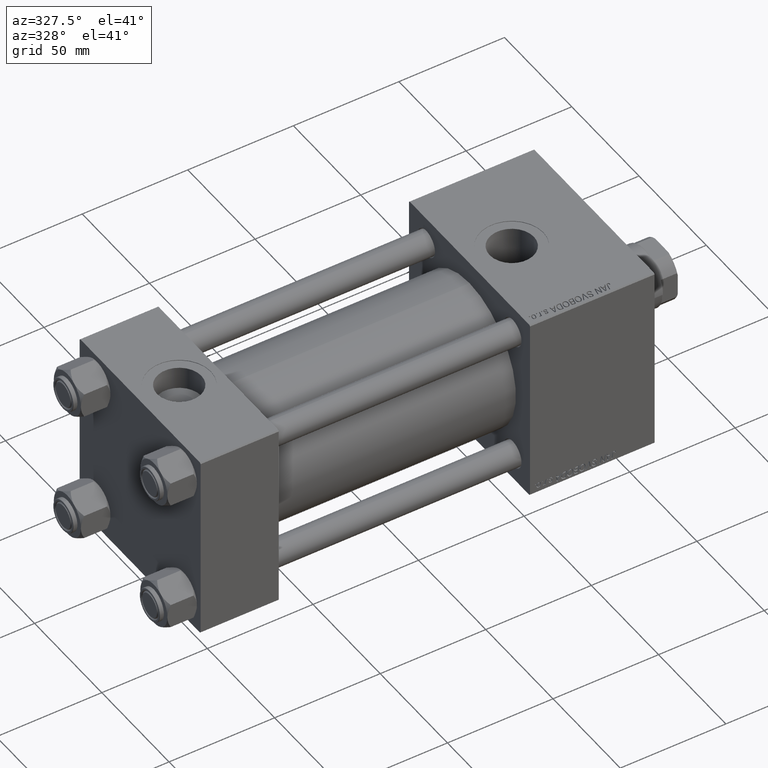
[diagram: clean part render]
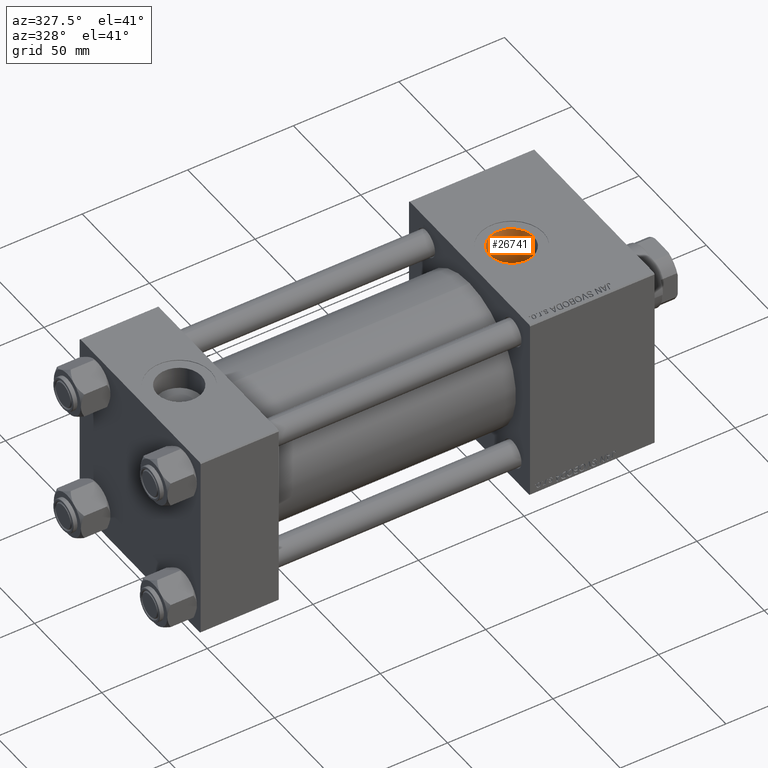
[diagram: same view with one face highlighted and labeled with its STEP entity id]
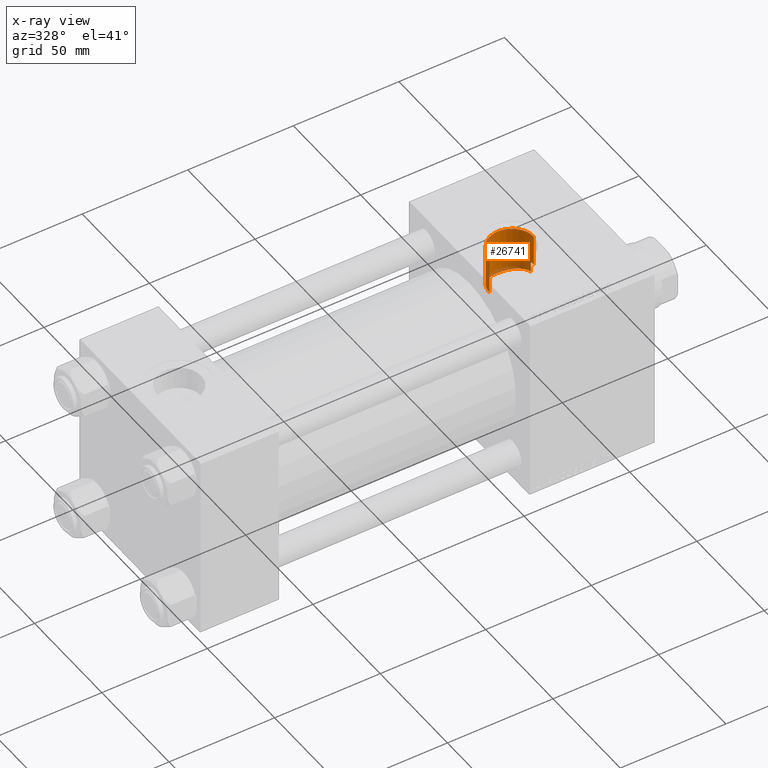
[diagram: x-ray of the same camera — body ghosted, the highlighted face saturated]
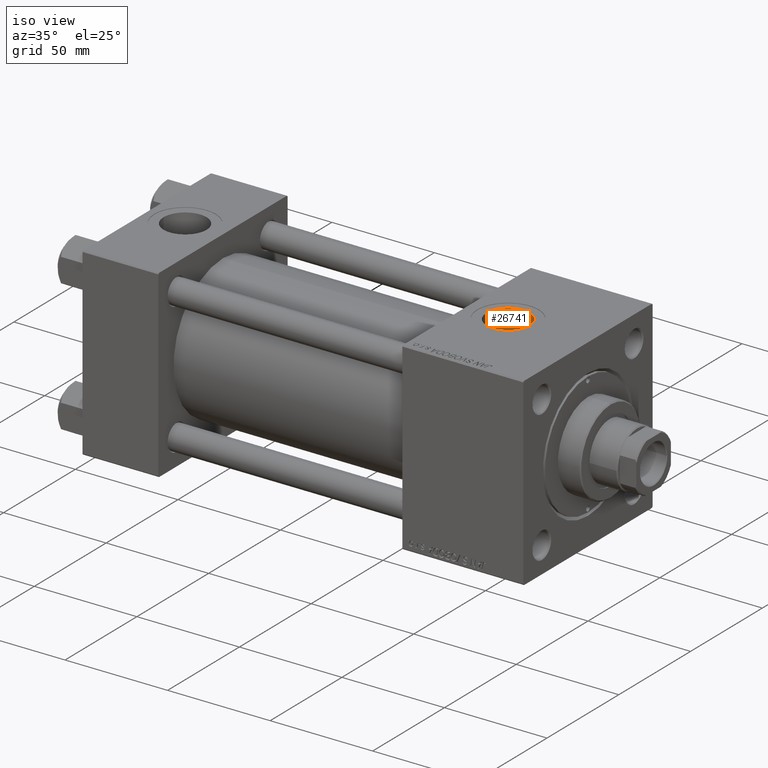
[diagram: same view with one face highlighted and labeled with its STEP entity id]
A machine part, auxiliary view. The second image highlights one B-rep face of the part: STEP entity #26741.
The next image is the same camera in x-ray: the body ghosted, the highlighted face saturated — about 5% of this face is hidden behind the body in this view.
A second angle (iso view) of the same face is appended — the face is thin or edge-on in the first view.
In plain terms, the highlighted cylindrical surface (edge-blend (fillet) strip) has radius 10.48 mm, axis along (0, 0, -1).
Its self-contained STEP definition (entity closure, byte-faithful):
#40 = CARTESIAN_POINT ( 'NONE',  ( 174.7045387977236430, 10.40468030871039140, 22.73199781475518577 ) ) ;
#557 = CARTESIAN_POINT ( 'NONE',  ( 172.4831019260239202, 9.893757827435589292, 22.95979354450773613 ) ) ;
#1013 = ORIENTED_EDGE ( 'NONE', *, *, #32311, .T. ) ;
#1394 = CARTESIAN_POINT ( 'NONE',  ( 165.5200000000000102, -6.938893903907227589E-15, 67.79999999999999716 ) ) ;
#1447 = ORIENTED_EDGE ( 'NONE', *, *, #45523, .T. ) ;
#1858 = EDGE_LOOP ( 'NONE', ( #43161, #38837, #33865, #1447, #27366, #1013 ) ) ;
#1999 = CIRCLE ( 'NONE', #39482, 10.47999999999998977 ) ;
#2117 = CARTESIAN_POINT ( 'NONE',  ( 166.4784251406594535, 4.426244458063030685, 24.61265260054171833 ) ) ;
#2895 = CARTESIAN_POINT ( 'NONE',  ( 165.8381471228398425, 2.583199243602507966, 24.86817457876016491 ) ) ;
#3162 = CARTESIAN_POINT ( 'NONE',  ( 186.2999999999999829, 1.934011375354239171, 29.93759509379469819 ) ) ;
#3645 = CARTESIAN_POINT ( 'NONE',  ( 173.4226261123153847, 10.16335071941092671, 22.84110205403496963 ) ) ;
#4083 = DIRECTION ( 'NONE',  ( 0.000000000000000000, 0.000000000000000000, -1.000000000000000000 ) ) ;
#4139 = CARTESIAN_POINT ( 'NONE',  ( 174.3830684219186082, 10.35963101535785569, 22.75263517047128303 ) ) ;
#4355 = DIRECTION ( 'NONE',  ( -1.000000000000000000, 0.000000000000000000, 0.000000000000000000 ) ) ;
#4876 = CARTESIAN_POINT ( 'NONE',  ( 165.5200000000000102, 3.061768933645607322E-15, 25.00000000000000000 ) ) ;
#6083 = EDGE_CURVE ( 'NONE', #13745, #16420, #27665, .T. ) ;
#7212 = CARTESIAN_POINT ( 'NONE',  ( 181.2812565894448085, 9.074845065222492124, 23.29687364020412588 ) ) ;
#7364 = AXIS2_PLACEMENT_3D ( 'NONE', #43051, #4083, #4355 ) ;
#7894 = CYLINDRICAL_SURFACE ( 'NONE', #7364, 10.47999999999998977 ) ;
#7998 = EDGE_CURVE ( 'NONE', #38816, #31644, #36280, .T. ) ;
#8278 = CARTESIAN_POINT ( 'NONE',  ( 186.2999999999999829, 1.934011375354239171, 67.79999999999999716 ) ) ;
#8591 = CARTESIAN_POINT ( 'NONE',  ( 186.4799999999999898, -5.655464058400802889E-15, 67.79999999999999716 ) ) ;
#8838 = LINE ( 'NONE', #8591, #16560 ) ;
#10290 = CARTESIAN_POINT ( 'NONE',  ( 166.0178759252196414, 3.208328409761912692, 24.79527483265625065 ) ) ;
#10814 = VECTOR ( 'NONE', #44442, 1000.000000000000000 ) ;
#11793 = CARTESIAN_POINT ( 'NONE',  ( 177.6386177692834281, 10.37204485282555311, 22.74698456315753248 ) ) ;
#13745 = VERTEX_POINT ( 'NONE', #3162 ) ;
#13847 = CARTESIAN_POINT ( 'NONE',  ( 168.6990350769791576, 7.545365073248999188, 23.83920699503247320 ) ) ;
#14108 = CARTESIAN_POINT ( 'NONE',  ( 170.2019733445124530, 8.735928194877937258, 23.42469629605733772 ) ) ;
#14360 = CARTESIAN_POINT ( 'NONE',  ( 165.5968747370656331, 1.308391668130477914, 24.96785615383025103 ) ) ;
#14364 = VERTEX_POINT ( 'NONE', #23413 ) ;
#14872 = CARTESIAN_POINT ( 'NONE',  ( 166.1232496530288074, 3.519319470400939842, 24.75293856241372126 ) ) ;
#15369 = CARTESIAN_POINT ( 'NONE',  ( 185.5190933919544989, 4.395560038025493554, 24.61229465162432817 ) ) ;
#15627 = CARTESIAN_POINT ( 'NONE',  ( 173.7430657101278086, 10.23927097569745825, 22.80705355501167730 ) ) ;
#16008 = CARTESIAN_POINT ( 'NONE',  ( 186.4799999999999898, 0.6446704584514152403, 30.00000000000000000 ) ) ;
#16330 = VERTEX_POINT ( 'NONE', #27661 ) ;
#16420 = VERTEX_POINT ( 'NONE', #31982 ) ;
#16560 = VECTOR ( 'NONE', #43504, 1000.000000000000000 ) ;
#17946 = CARTESIAN_POINT ( 'NONE',  ( 165.5200000000000102, 3.061768933645607322E-15, 25.00000000000000000 ) ) ;
#18050 = DIRECTION ( 'NONE',  ( -0.000000000000000000, -0.000000000000000000, -1.000000000000000000 ) ) ;
#19194 = CARTESIAN_POINT ( 'NONE',  ( 186.1785022418928008, 2.581074223304059778, 24.87487220027364287 ) ) ;
#19444 = CARTESIAN_POINT ( 'NONE',  ( 180.4188195642437904, 9.508309770353172041, 23.12177175093561843 ) ) ;
#19698 = CARTESIAN_POINT ( 'NONE',  ( 180.1216041761689155, 9.640975358095692727, 23.06660230998518912 ) ) ;
#22011 = CARTESIAN_POINT ( 'NONE',  ( 170.7478055748507586, 9.074580334331656672, 23.29559678875703099 ) ) ;
#22270 = CARTESIAN_POINT ( 'NONE',  ( 165.5199999999999818, 0.3287850015386582503, 25.00000000000000711 ) ) ;
#22305 = B_SPLINE_CURVE_WITH_KNOTS ( 'NONE', 3,
 ( #35566, #39156, #16008, #47053 ),
 .UNSPECIFIED., .F., .F.,
 ( 4, 4 ),
 ( 0.000000000000000000, 0.001934011375354235994 ),
 .UNSPECIFIED. ) ;
#22769 = CARTESIAN_POINT ( 'NONE',  ( 181.8230811921166605, 8.736836638396468402, 23.42725551097155190 ) ) ;
#23413 = CARTESIAN_POINT ( 'NONE',  ( 186.4799999999999898, 3.352779466116923030E-15, 30.00000000000000000 ) ) ;
#24716 = VECTOR ( 'NONE', #39380, 1000.000000000000000 ) ;
#25840 = CARTESIAN_POINT ( 'NONE',  ( 171.8851596875121857, 9.659575400900992648, 23.06052388961922617 ) ) ;
#26741 = ADVANCED_FACE ( 'NONE', ( #27530 ), #7894, .F. ) ;
#26830 = CARTESIAN_POINT ( 'NONE',  ( 182.5884970808938590, 8.156264676250692958, 23.63297485160381939 ) ) ;
#27342 = CARTESIAN_POINT ( 'NONE',  ( 179.5162921391536770, 9.877839664245716023, 22.96616710619941060 ) ) ;
#27366 = ORIENTED_EDGE ( 'NONE', *, *, #6083, .F. ) ;
#27530 = FACE_OUTER_BOUND ( 'NONE', #1858, .T. ) ;
#27584 = CARTESIAN_POINT ( 'NONE',  ( 179.2095190560418700, 9.981685871371828611, 22.92107120454308955 ) ) ;
#27661 = CARTESIAN_POINT ( 'NONE',  ( 186.4799999999999898, -5.655464058400803678E-15, 44.79999999999999005 ) ) ;
#27665 = LINE ( 'NONE', #8278, #24716 ) ;
#29395 = CARTESIAN_POINT ( 'NONE',  ( 169.1687481271820275, 7.973357901501750611, 23.69796365038536123 ) ) ;
#29662 = CARTESIAN_POINT ( 'NONE',  ( 171.0272351189628921, 9.230614084050156265, 23.23401715973116666 ) ) ;
#30408 = CARTESIAN_POINT ( 'NONE',  ( 166.7671663617161357, 4.999617035179625191, 24.50132901008039354 ) ) ;
#30643 = CARTESIAN_POINT ( 'NONE',  ( 178.2768204000754793, 10.25012929133882977, 22.80291826729094495 ) ) ;
#30884 = CARTESIAN_POINT ( 'NONE',  ( 182.8367452354718523, 7.949336738018567772, 23.70358087546938464 ) ) ;
#31150 = CARTESIAN_POINT ( 'NONE',  ( 176.3268763252385156, 10.49559595691616920, 22.69024210216182524 ) ) ;
#31397 = CARTESIAN_POINT ( 'NONE',  ( 184.5621068483243334, 6.077585296273467996, 24.25652138941324765 ) ) ;
#31644 = VERTEX_POINT ( 'NONE', #4876 ) ;
#31982 = CARTESIAN_POINT ( 'NONE',  ( 186.2999999999999829, 1.934011375354239171, 24.92507973909011554 ) ) ;
#32311 = EDGE_CURVE ( 'NONE', #13745, #14364, #22305, .T. ) ;
#33091 = EDGE_CURVE ( 'NONE', #16330, #14364, #8838, .T. ) ;
#33453 = CARTESIAN_POINT ( 'NONE',  ( 169.9349178649772512, 8.552642181762129425, 23.49243050560862045 ) ) ;
#33865 = ORIENTED_EDGE ( 'NONE', *, *, #7998, .T. ) ;
#34204 = CARTESIAN_POINT ( 'NONE',  ( 165.7631178406934964, 2.267565399210869526, 24.89900277306705689 ) ) ;
#34445 = CARTESIAN_POINT ( 'NONE',  ( 185.6493108754359582, 4.101772300320357445, 24.66307610818223850 ) ) ;
#34554 = CARTESIAN_POINT ( 'NONE',  ( 176.0000000000000000, -6.938893903907227589E-15, 44.79999999999999005 ) ) ;
#34692 = CARTESIAN_POINT ( 'NONE',  ( 183.5346559080208522, 7.291128265816992027, 23.91442154817952925 ) ) ;
#35196 = CARTESIAN_POINT ( 'NONE',  ( 184.1771732855570463, 6.585514499373023689, 24.12201144741173664 ) ) ;
#35566 = CARTESIAN_POINT ( 'NONE',  ( 186.2999999999999829, 1.934011375354239171, 29.93759509379469819 ) ) ;
#36280 = LINE ( 'NONE', #1394, #10814 ) ;
#37790 = CARTESIAN_POINT ( 'NONE',  ( 165.5356230239824527, 0.6585730766822428528, 24.99343936272600430 ) ) ;
#38816 = VERTEX_POINT ( 'NONE', #50241 ) ;
#38837 = ORIENTED_EDGE ( 'NONE', *, *, #41079, .F. ) ;
#39156 = CARTESIAN_POINT ( 'NONE',  ( 186.4210485436892952, 1.289340916902827150, 29.97924172559974565 ) ) ;
#39287 = CARTESIAN_POINT ( 'NONE',  ( 185.9991942442599679, 3.203101616166179610, 24.80136239248104246 ) ) ;
#39380 = DIRECTION ( 'NONE',  ( 0.000000000000000000, 0.000000000000000000, -1.000000000000000000 ) ) ;
#39482 = AXIS2_PLACEMENT_3D ( 'NONE', #34554, #18050, #49847 ) ;
#40297 = B_SPLINE_CURVE_WITH_KNOTS ( 'NONE', 3,
 ( #17946, #22270, #37790, #14360, #45688, #34204, #2895, #10290, #14872, #2117, #30408, #45944, #48738, #13847, #29395, #33453, #14108, #22011, #29662, #25840, #557, #3645, #15627, #4139, #40, #49993, #31150, #11793, #30643, #27584, #27342, #19698, #19444, #7212, #22769, #26830, #30884, #46184, #34692, #35196, #31397, #43100, #46434, #15369, #34445, #39287, #19194, #42850 ),
 .UNSPECIFIED., .F., .F.,
 ( 4, 2, 2, 2, 2, 2, 2, 2, 2, 2, 2, 2, 2, 2, 2, 2, 2, 2, 2, 2, 2, 2, 2, 4 ),
 ( 0.03121016949216461056, 0.03218464452383356517, 0.03315911955550251977, 0.03413359458717148132, 0.03510806961884043592, 0.03705701968217837983, 0.03900596974551632373, 0.04095491980885426764, 0.04192939484052320837, 0.04290386987219214909, 0.04485281993553003055, 0.04582729496719901291, 0.04680176999886799527, 0.04875072006220604326, 0.05069967012554409125, 0.05167414515721314994, 0.05264862018888222250, 0.05459757025222042315, 0.05557204528388949571, 0.05654652031555856828, 0.05849547037889665096, 0.05946994541056569578, 0.06044442044223473365, 0.06239337050557282327 ),
 .UNSPECIFIED. ) ;
#41079 = EDGE_CURVE ( 'NONE', #38816, #16330, #1999, .T. ) ;
#42850 = CARTESIAN_POINT ( 'NONE',  ( 186.2999999999999829, 1.934011375354239171, 24.92507973909011554 ) ) ;
#43051 = CARTESIAN_POINT ( 'NONE',  ( 176.0000000000000000, -6.938893903907227589E-15, 67.79999999999999716 ) ) ;
#43100 = CARTESIAN_POINT ( 'NONE',  ( 185.0727601258626578, 5.255426041479174692, 24.44298397004093104 ) ) ;
#43161 = ORIENTED_EDGE ( 'NONE', *, *, #33091, .F. ) ;
#43504 = DIRECTION ( 'NONE',  ( 0.000000000000000000, 0.000000000000000000, -1.000000000000000000 ) ) ;
#44442 = DIRECTION ( 'NONE',  ( 0.000000000000000000, 0.000000000000000000, -1.000000000000000000 ) ) ;
#45523 = EDGE_CURVE ( 'NONE', #31644, #16420, #40297, .T. ) ;
#45688 = CARTESIAN_POINT ( 'NONE',  ( 165.6424818341990033, 1.630161534427968295, 24.94884296524731937 ) ) ;
#45944 = CARTESIAN_POINT ( 'NONE',  ( 167.4454009048543526, 6.087710720132626818, 24.25388776972978988 ) ) ;
#46184 = CARTESIAN_POINT ( 'NONE',  ( 183.3095492883835220, 7.516882943737416056, 23.84424818912265920 ) ) ;
#46434 = CARTESIAN_POINT ( 'NONE',  ( 185.2312790006574232, 4.971677288869464917, 24.50241663594842123 ) ) ;
#47053 = CARTESIAN_POINT ( 'NONE',  ( 186.4799999999999898, 3.352779466116923030E-15, 30.00000000000000000 ) ) ;
#48738 = CARTESIAN_POINT ( 'NONE',  ( 167.8384609629550539, 6.604990798069072966, 24.11668345353552567 ) ) ;
#49847 = DIRECTION ( 'NONE',  ( 1.000000000000000000, 0.000000000000000000, 0.000000000000000000 ) ) ;
#49993 = CARTESIAN_POINT ( 'NONE',  ( 175.6733399539855327, 10.49497315035229761, 22.69052503754343064 ) ) ;
#50241 = CARTESIAN_POINT ( 'NONE',  ( 165.5200000000000102, -6.938893903907227589E-15, 44.79999999999999005 ) ) ;